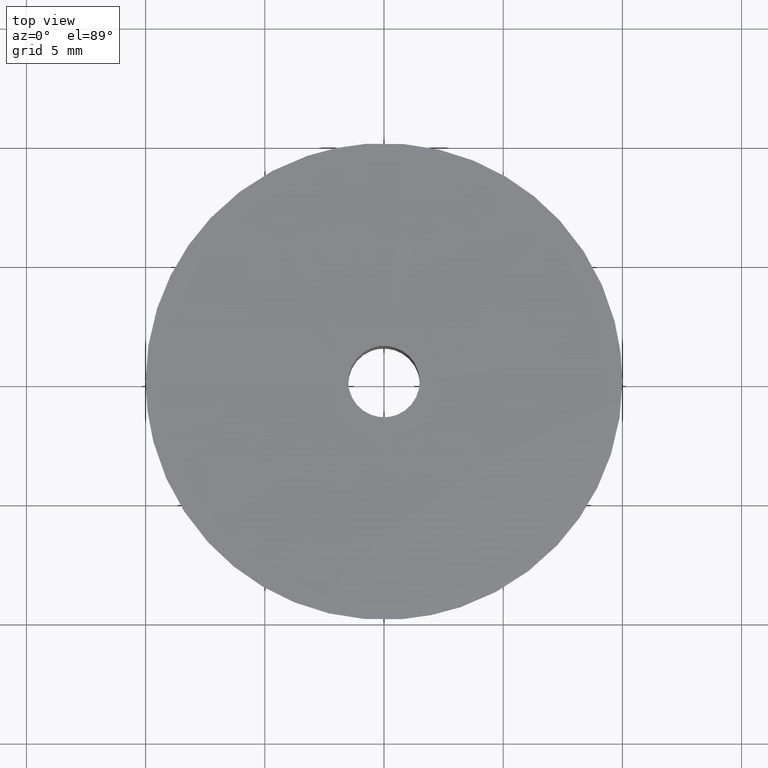
[diagram: clean part render]
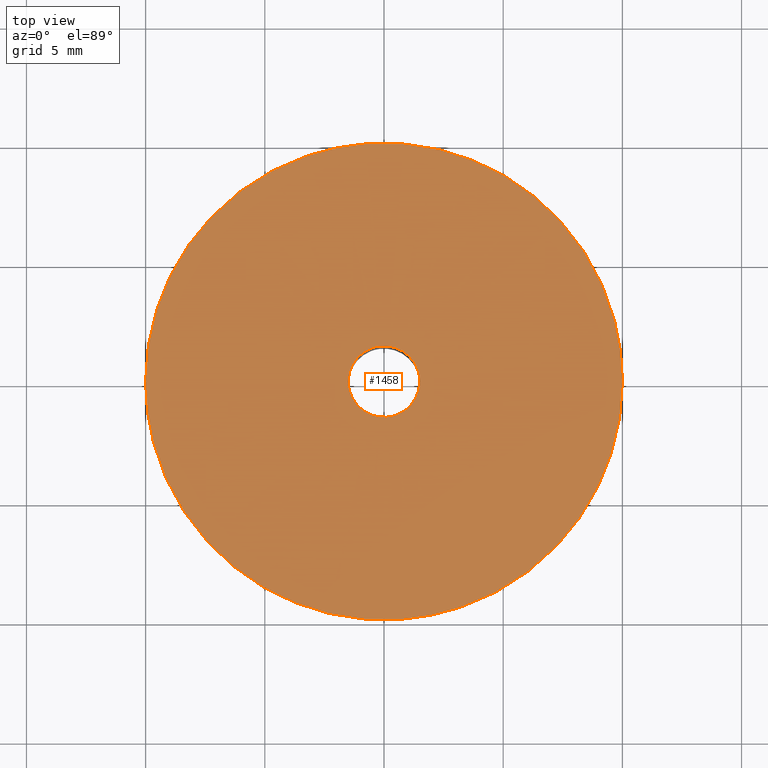
[diagram: same view with one face highlighted and labeled with its STEP entity id]
A machine part, top view. The second image highlights one B-rep face of the part: STEP entity #1458.
In plain terms, the highlighted face is a freeform B-spline surface patch.
Its self-contained STEP definition (entity closure, byte-faithful):
#545=CARTESIAN_POINT('',(0.784585191233455,-9.969173368294124,11.999997470832160));
#546=VERTEX_POINT('',#545);
#552=CARTESIAN_POINT('',(-10.0,0.0,12.0));
#553=VERTEX_POINT('',#552);
#554=CARTESIAN_POINT('',(0.784585191233455,-9.969173368294124,11.999997470832158));
#555=CARTESIAN_POINT('',(0.392898157816126,-9.999999587400994,11.999997516760786));
#556=CARTESIAN_POINT('',(-0.000000031822302,-9.999999595656378,11.999997566446060));
#557=CARTESIAN_POINT('',(-10.000000015286004,-9.999999805771482,11.999998831029975));
#558=CARTESIAN_POINT('',(-10.0,0.0,12.0));
#566=(BOUNDED_CURVE()B_SPLINE_CURVE(2,(#554,#555,#556,#557,#558),.UNSPECIFIED.,.F.,.U.)B_SPLINE_CURVE_WITH_KNOTS((3,2,3),(0.736331399213855,0.750000000000000,1.0),.UNSPECIFIED.)CURVE()GEOMETRIC_REPRESENTATION_ITEM()RATIONAL_B_SPLINE_CURVE((0.969723561903116,0.983986238076279,1.0,0.707106781186548,1.0))REPRESENTATION_ITEM(''));
#567=EDGE_CURVE('',#546,#553,#566,.T.);
#569=CARTESIAN_POINT('',(-0.784585191233454,9.969173368294124,11.999997470832170));
#570=VERTEX_POINT('',#569);
#571=CARTESIAN_POINT('',(-10.0,0.0,12.0));
#572=CARTESIAN_POINT('',(-9.999999983463706,9.243910038798358,11.999998735416085));
#573=CARTESIAN_POINT('',(-0.784585191233454,9.969173368294124,11.999997470832167));
#581=(BOUNDED_CURVE()B_SPLINE_CURVE(2,(#571,#572,#573),.UNSPECIFIED.,.F.,.U.)B_SPLINE_CURVE_WITH_KNOTS((3,3),(0.0,0.236331399213855),.UNSPECIFIED.)CURVE()GEOMETRIC_REPRESENTATION_ITEM()RATIONAL_B_SPLINE_CURVE((1.0,0.723120543110268,0.969723561903117))REPRESENTATION_ITEM(''));
#582=EDGE_CURVE('',#553,#570,#581,.T.);
#628=CARTESIAN_POINT('',(10.0,0.0,12.0));
#629=VERTEX_POINT('',#628);
#630=CARTESIAN_POINT('',(-0.784585191233454,9.969173368294124,11.999997470832167));
#631=CARTESIAN_POINT('',(-0.392898157816127,9.999999587400991,11.999997516760786));
#632=CARTESIAN_POINT('',(0.000000031822300,9.999999595656375,11.999997566446060));
#633=CARTESIAN_POINT('',(10.000000015286004,9.999999805771481,11.999998831029977));
#634=CARTESIAN_POINT('',(10.0,0.0,12.0));
#642=(BOUNDED_CURVE()B_SPLINE_CURVE(2,(#630,#631,#632,#633,#634),.UNSPECIFIED.,.F.,.U.)B_SPLINE_CURVE_WITH_KNOTS((3,2,3),(0.236331399213855,0.250000000000000,0.500000000000000),.UNSPECIFIED.)CURVE()GEOMETRIC_REPRESENTATION_ITEM()RATIONAL_B_SPLINE_CURVE((0.969723561903117,0.983986238076280,1.0,0.707106781186548,1.0))REPRESENTATION_ITEM(''));
#643=EDGE_CURVE('',#570,#629,#642,.T.);
#645=CARTESIAN_POINT('',(10.0,0.0,12.0));
#646=CARTESIAN_POINT('',(9.999999983463704,-9.243910038798353,11.999998735416083));
#647=CARTESIAN_POINT('',(0.784585191233455,-9.969173368294124,11.999997470832158));
#655=(BOUNDED_CURVE()B_SPLINE_CURVE(2,(#645,#646,#647),.UNSPECIFIED.,.F.,.U.)B_SPLINE_CURVE_WITH_KNOTS((3,3),(0.500000000000000,0.736331399213855),.UNSPECIFIED.)CURVE()GEOMETRIC_REPRESENTATION_ITEM()RATIONAL_B_SPLINE_CURVE((1.0,0.723120543110268,0.969723561903116))REPRESENTATION_ITEM(''));
#656=EDGE_CURVE('',#629,#546,#655,.T.);
#697=CARTESIAN_POINT('',(-0.177051352012515,1.489514289542246,12.0));
#698=VERTEX_POINT('',#697);
#699=CARTESIAN_POINT('',(1.500000000000000,0.0,12.0));
#700=VERTEX_POINT('',#699);
#701=CARTESIAN_POINT('',(-0.177051352012515,1.489514289542245,12.000000000000002));
#702=CARTESIAN_POINT('',(-0.088836179505531,1.500000000000000,12.0));
#703=CARTESIAN_POINT('',(0.0,1.500000000000000,12.0));
#704=CARTESIAN_POINT('',(1.500000000000000,1.500000000000000,12.0));
#705=CARTESIAN_POINT('',(1.500000000000000,0.0,12.0));
#713=(BOUNDED_CURVE()B_SPLINE_CURVE(2,(#701,#702,#703,#704,#705),.UNSPECIFIED.,.F.,.U.)B_SPLINE_CURVE_WITH_KNOTS((3,2,3),(0.229562473509432,0.250000000000000,0.500000000000000),.UNSPECIFIED.)CURVE()GEOMETRIC_REPRESENTATION_ITEM()RATIONAL_B_SPLINE_CURVE((0.956026754175709,0.976055948326369,1.0,0.707106781186548,1.0))REPRESENTATION_ITEM(''));
#714=EDGE_CURVE('',#698,#700,#713,.T.);
#755=CARTESIAN_POINT('',(0.091572809335385,-1.497202197630776,12.0));
#756=VERTEX_POINT('',#755);
#762=CARTESIAN_POINT('',(1.500000000000000,0.0,12.0));
#763=CARTESIAN_POINT('',(1.500000000000001,-1.411059100296042,12.0));
#764=CARTESIAN_POINT('',(0.091572809335385,-1.497202197630776,12.0));
#772=(BOUNDED_CURVE()B_SPLINE_CURVE(2,(#762,#763,#764),.UNSPECIFIED.,.F.,.U.)B_SPLINE_CURVE_WITH_KNOTS((3,3),(0.500000000000000,0.739332962234340),.UNSPECIFIED.)CURVE()GEOMETRIC_REPRESENTATION_ITEM()RATIONAL_B_SPLINE_CURVE((1.0,0.719603993292103,0.976072041656852))REPRESENTATION_ITEM(''));
#773=EDGE_CURVE('',#700,#756,#772,.T.);
#796=CARTESIAN_POINT('',(-1.500000000000000,0.0,12.0));
#797=VERTEX_POINT('',#796);
#798=CARTESIAN_POINT('',(-1.500000000000000,0.0,12.0));
#799=CARTESIAN_POINT('',(-1.500000000000000,1.332261788877733,12.0));
#800=CARTESIAN_POINT('',(-0.177051352012515,1.489514289542246,12.000000000000005));
#808=(BOUNDED_CURVE()B_SPLINE_CURVE(2,(#798,#799,#800),.UNSPECIFIED.,.F.,.U.)B_SPLINE_CURVE_WITH_KNOTS((3,3),(0.0,0.229562473509432),.UNSPECIFIED.)CURVE()GEOMETRIC_REPRESENTATION_ITEM()RATIONAL_B_SPLINE_CURVE((1.0,0.731050832860179,0.956026754175709))REPRESENTATION_ITEM(''));
#809=EDGE_CURVE('',#797,#698,#808,.T.);
#811=CARTESIAN_POINT('',(0.091572809335385,-1.497202197630776,11.999999999999996));
#812=CARTESIAN_POINT('',(0.045829144981075,-1.500000000000000,12.000000000000005));
#813=CARTESIAN_POINT('',(0.0,-1.500000000000000,12.0));
#814=CARTESIAN_POINT('',(-1.500000000000000,-1.500000000000000,12.0));
#815=CARTESIAN_POINT('',(-1.500000000000000,0.0,12.0));
#823=(BOUNDED_CURVE()B_SPLINE_CURVE(2,(#811,#812,#813,#814,#815),.UNSPECIFIED.,.F.,.U.)B_SPLINE_CURVE_WITH_KNOTS((3,2,3),(0.739332962234339,0.750000000000000,1.0),.UNSPECIFIED.)CURVE()GEOMETRIC_REPRESENTATION_ITEM()RATIONAL_B_SPLINE_CURVE((0.976072041656851,0.987502787894444,1.0,0.707106781186548,1.0))REPRESENTATION_ITEM(''));
#824=EDGE_CURVE('',#756,#797,#823,.T.);
#1441=CARTESIAN_POINT('',(10.998999961236120,-10.995946517086031,12.0));
#1442=CARTESIAN_POINT('',(-10.999000497677921,-10.995946517086031,12.0));
#1443=CARTESIAN_POINT('',(10.998999961236120,10.995946517086031,12.0));
#1444=CARTESIAN_POINT('',(-10.999000497677921,10.995946517086031,12.0));
#1445=B_SPLINE_SURFACE_WITH_KNOTS('',1,1,((#1441,#1443),(#1442,#1444)),.UNSPECIFIED.,.F.,.F.,.U.,(2,2),(2,2),(0.0,21.998000458914039),(0.0,21.991893034172062),.UNSPECIFIED.);
#1446=ORIENTED_EDGE('',*,*,#567,.F.);
#1447=ORIENTED_EDGE('',*,*,#656,.F.);
#1448=ORIENTED_EDGE('',*,*,#643,.F.);
#1449=ORIENTED_EDGE('',*,*,#582,.F.);
#1450=EDGE_LOOP('',(#1446,#1447,#1448,#1449));
#1451=FACE_OUTER_BOUND('',#1450,.T.);
#1452=ORIENTED_EDGE('',*,*,#773,.T.);
#1453=ORIENTED_EDGE('',*,*,#824,.T.);
#1454=ORIENTED_EDGE('',*,*,#809,.T.);
#1455=ORIENTED_EDGE('',*,*,#714,.T.);
#1456=EDGE_LOOP('',(#1452,#1453,#1454,#1455));
#1457=FACE_BOUND('',#1456,.T.);
#1458=ADVANCED_FACE('',(#1451,#1457),#1445,.F.);